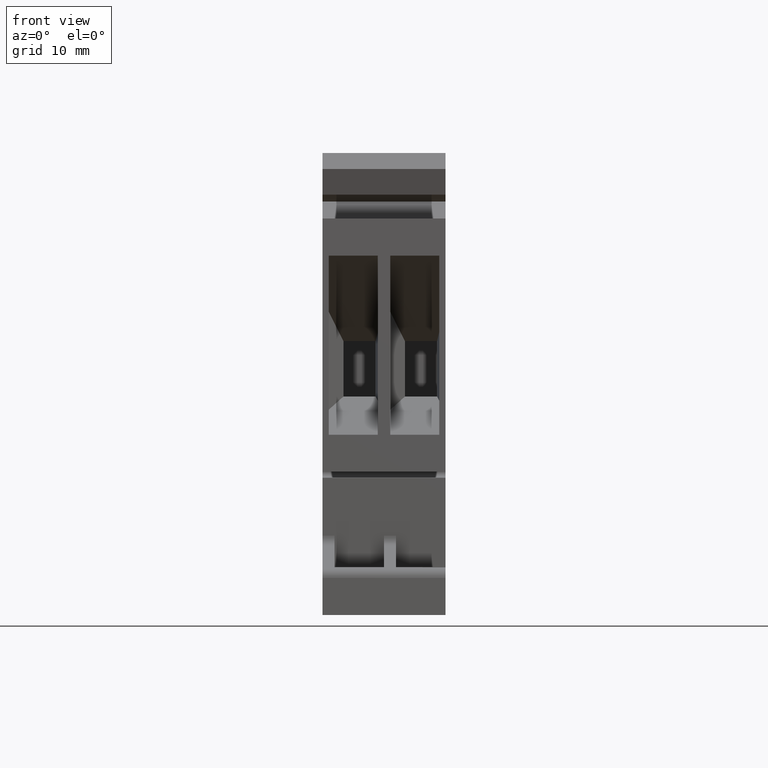
[diagram: clean part render]
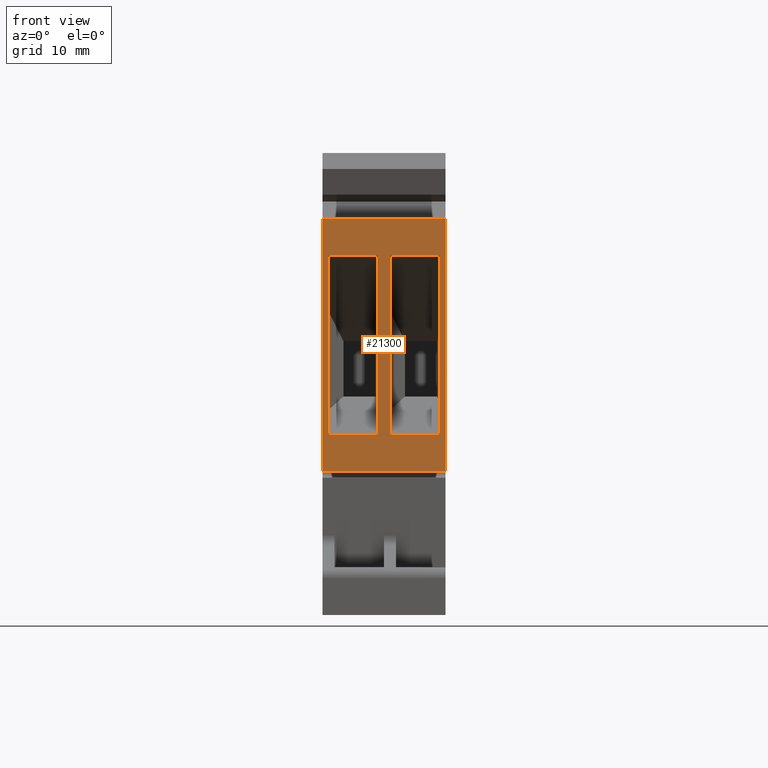
[diagram: same view with one face highlighted and labeled with its STEP entity id]
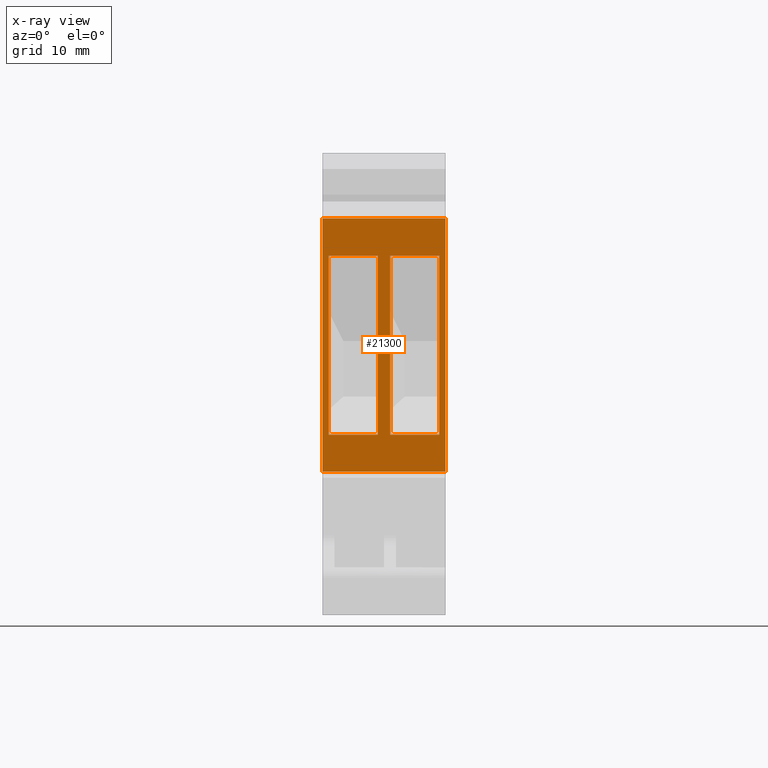
[diagram: x-ray of the same camera — body ghosted, the highlighted face saturated]
A machine part, front view. The second image highlights one B-rep face of the part: STEP entity #21300.
The next image is the same camera in x-ray: the body ghosted, the highlighted face saturated — about 0% of this face is hidden behind the body in this view.
In plain terms, the highlighted planar face has unit normal (-0, 1, 0).
Its self-contained STEP definition (entity closure, byte-faithful):
#120=CARTESIAN_POINT('',(-44.8520985338077,16.2295237515583,10.3));
#130=VERTEX_POINT('',#120);
#160=CARTESIAN_POINT('',(-44.8520985338077,8.88178419700125E-16,10.3));
#170=DIRECTION('',(0.,1.,0.));
#180=VECTOR('',#170,1.);
#190=LINE('',#160,#180);
#200=CARTESIAN_POINT('',(-44.8520985338077,37.4391457022166,10.3));
#210=VERTEX_POINT('',#200);
#220=EDGE_CURVE('',#130,#210,#190,.T.);
#11240=CARTESIAN_POINT('',(-44.8520985338077,37.4391457022166,
-7.105427357601E-15));
#11250=VERTEX_POINT('',#11240);
#11280=CARTESIAN_POINT('',(-44.8520985338077,1.77635683940025E-15,
-7.105427357601E-15));
#11290=DIRECTION('',(0.,1.,0.));
#11300=VECTOR('',#11290,1.);
#11310=LINE('',#11280,#11300);
#11320=CARTESIAN_POINT('',(-44.8520985338077,16.2295237515583,
-7.105427357601E-15));
#11330=VERTEX_POINT('',#11320);
#11340=EDGE_CURVE('',#11330,#11250,#11310,.T.);
#20410=CARTESIAN_POINT('',(-44.8520985338077,16.7795237515581,5.15));
#20420=DIRECTION('',(1.,0.,0.));
#20430=DIRECTION('',(0.,-1.,0.));
#20440=AXIS2_PLACEMENT_3D('',#20410,#20420,#20430);
#20450=PLANE('',#20440);
#20460=CARTESIAN_POINT('',(-44.8520985338077,10.9158644389662,4.625));
#20470=DIRECTION('',(0.,1.,0.));
#20480=VECTOR('',#20470,1.);
#20490=LINE('',#20460,#20480);
#20500=CARTESIAN_POINT('',(-44.8520985338077,19.3295237515583,4.625));
#20510=VERTEX_POINT('',#20500);
#20520=CARTESIAN_POINT('',(-44.8520985338077,34.3295237515583,4.625));
#20530=VERTEX_POINT('',#20520);
#20540=EDGE_CURVE('',#20510,#20530,#20490,.T.);
#20550=ORIENTED_EDGE('',*,*,#20540,.F.);
#20560=CARTESIAN_POINT('',(-44.8520985338077,34.3295237515583,5.15));
#20570=DIRECTION('',(0.,0.,1.));
#20580=VECTOR('',#20570,1.);
#20590=LINE('',#20560,#20580);
#20600=CARTESIAN_POINT('',(-44.8520985338077,34.3295237515583,
0.525000000000004));
#20610=VERTEX_POINT('',#20600);
#20620=EDGE_CURVE('',#20610,#20530,#20590,.T.);
#20630=ORIENTED_EDGE('',*,*,#20620,.T.);
#20640=CARTESIAN_POINT('',(-44.8520985338077,10.9158644389662,
0.525000000000004));
#20650=DIRECTION('',(0.,-1.,0.));
#20660=VECTOR('',#20650,1.);
#20670=LINE('',#20640,#20660);
#20680=CARTESIAN_POINT('',(-44.8520985338077,19.3295237515583,
0.525000000000004));
#20690=VERTEX_POINT('',#20680);
#20700=EDGE_CURVE('',#20610,#20690,#20670,.T.);
#20710=ORIENTED_EDGE('',*,*,#20700,.F.);
#20720=CARTESIAN_POINT('',(-44.8520985338077,19.3295237515583,5.15));
#20730=DIRECTION('',(0.,0.,-1.));
#20740=VECTOR('',#20730,1.);
#20750=LINE('',#20720,#20740);
#20760=EDGE_CURVE('',#20510,#20690,#20750,.T.);
#20770=ORIENTED_EDGE('',*,*,#20760,.T.);
#20780=EDGE_LOOP('',(#20770,#20710,#20630,#20550));
#20790=FACE_BOUND('',#20780,.T.);
#20800=ORIENTED_EDGE('',*,*,#220,.T.);
#20810=CARTESIAN_POINT('',(-44.8520985338077,16.2295237515583,
-5.14999999999999));
#20820=DIRECTION('',(0.,0.,1.));
#20830=VECTOR('',#20820,1.);
#20840=LINE('',#20810,#20830);
#20850=EDGE_CURVE('',#11330,#130,#20840,.T.);
#20860=ORIENTED_EDGE('',*,*,#20850,.T.);
#20870=ORIENTED_EDGE('',*,*,#11340,.F.);
#20880=CARTESIAN_POINT('',(-44.8520985338077,37.4391457022166,
-5.14999999999999));
#20890=DIRECTION('',(0.,0.,1.));
#20900=VECTOR('',#20890,1.);
#20910=LINE('',#20880,#20900);
#20920=EDGE_CURVE('',#11250,#210,#20910,.T.);
#20930=ORIENTED_EDGE('',*,*,#20920,.F.);
#20940=EDGE_LOOP('',(#20930,#20870,#20860,#20800));
#20950=FACE_OUTER_BOUND('',#20940,.T.);
#20960=CARTESIAN_POINT('',(-44.8520985338077,10.9158644389662,9.775));
#20970=DIRECTION('',(0.,1.,0.));
#20980=VECTOR('',#20970,1.);
#20990=LINE('',#20960,#20980);
#21000=CARTESIAN_POINT('',(-44.8520985338077,19.3295237515583,9.775));
#21010=VERTEX_POINT('',#21000);
#21020=CARTESIAN_POINT('',(-44.8520985338077,34.3295237515583,9.775));
#21030=VERTEX_POINT('',#21020);
#21040=EDGE_CURVE('',#21010,#21030,#20990,.T.);
#21050=ORIENTED_EDGE('',*,*,#21040,.F.);
#21060=CARTESIAN_POINT('',(-44.8520985338077,34.3295237515583,10.3));
#21070=DIRECTION('',(0.,0.,1.));
#21080=VECTOR('',#21070,1.);
#21090=LINE('',#21060,#21080);
#21100=CARTESIAN_POINT('',(-44.8520985338077,34.3295237515583,5.675));
#21110=VERTEX_POINT('',#21100);
#21120=EDGE_CURVE('',#21110,#21030,#21090,.T.);
#21130=ORIENTED_EDGE('',*,*,#21120,.T.);
#21140=CARTESIAN_POINT('',(-44.8520985338077,10.9158644389662,5.675));
#21150=DIRECTION('',(0.,-1.,0.));
#21160=VECTOR('',#21150,1.);
#21170=LINE('',#21140,#21160);
#21180=CARTESIAN_POINT('',(-44.8520985338077,19.3295237515583,5.675));
#21190=VERTEX_POINT('',#21180);
#21200=EDGE_CURVE('',#21110,#21190,#21170,.T.);
#21210=ORIENTED_EDGE('',*,*,#21200,.F.);
#21220=CARTESIAN_POINT('',(-44.8520985338077,19.3295237515583,10.3));
#21230=DIRECTION('',(0.,0.,-1.));
#21240=VECTOR('',#21230,1.);
#21250=LINE('',#21220,#21240);
#21260=EDGE_CURVE('',#21010,#21190,#21250,.T.);
#21270=ORIENTED_EDGE('',*,*,#21260,.T.);
#21280=EDGE_LOOP('',(#21270,#21210,#21130,#21050));
#21290=FACE_BOUND('',#21280,.T.);
#21300=ADVANCED_FACE('',(#20790,#20950,#21290),#20450,.F.);